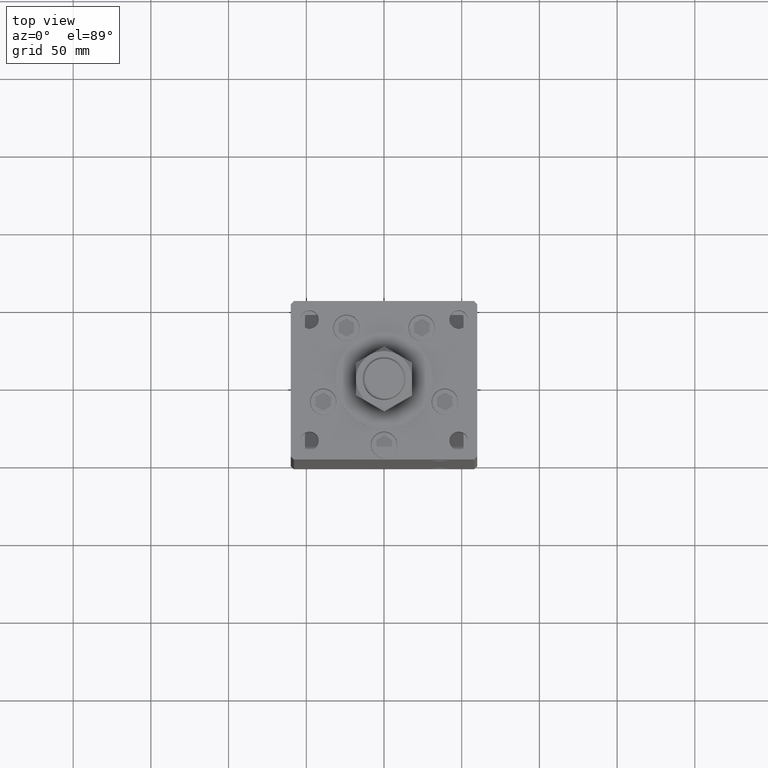
[diagram: clean part render]
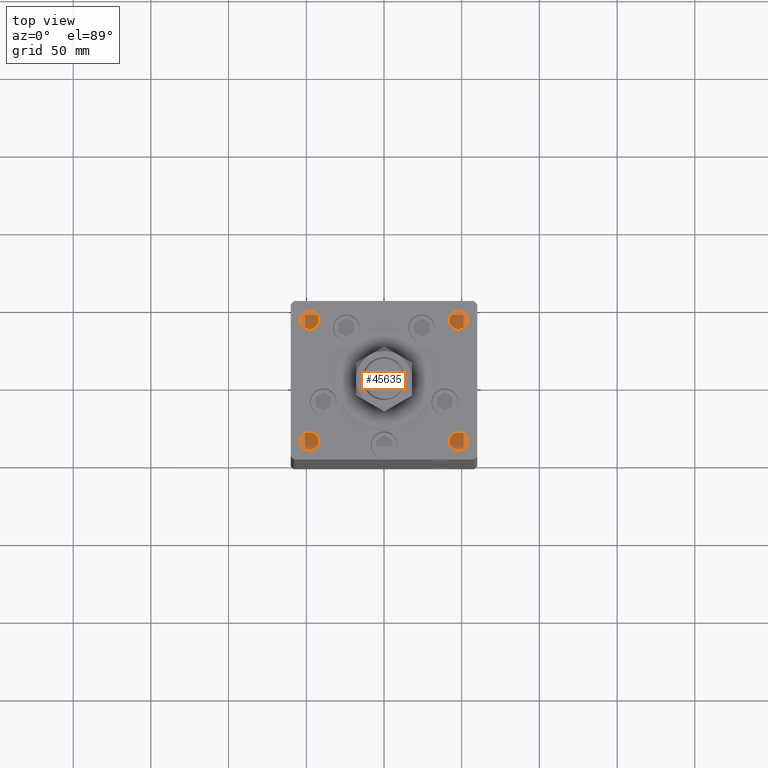
[diagram: same view with one face highlighted and labeled with its STEP entity id]
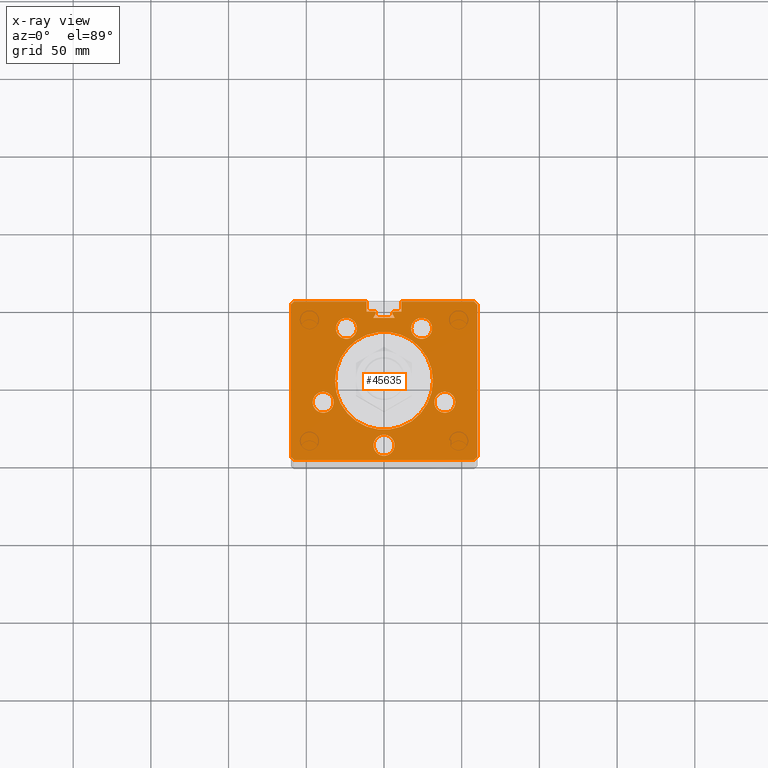
[diagram: x-ray of the same camera — body ghosted, the highlighted face saturated]
A machine part, top view. The second image highlights one B-rep face of the part: STEP entity #45635.
The next image is the same camera in x-ray: the body ghosted, the highlighted face saturated — about 0% of this face is hidden behind the body in this view.
In plain terms, the highlighted planar face has unit normal (0, 0, -1).
Its self-contained STEP definition (entity closure, byte-faithful):
#270 = CARTESIAN_POINT ( 'NONE',  ( -11.25000000000000178, 44.50000000000000000, 318.5000000000000000 ) ) ;
#558 = AXIS2_PLACEMENT_3D ( 'NONE', #9356, #42486, #34333 ) ;
#716 = EDGE_CURVE ( 'NONE', #14718, #2079, #18119, .T. ) ;
#1038 = CARTESIAN_POINT ( 'NONE',  ( -60.00000000000001421, 49.00000000000000000, 318.5000000000000000 ) ) ;
#1446 = CIRCLE ( 'NONE', #50907, 31.50000000000000000 ) ;
#1694 = ORIENTED_EDGE ( 'NONE', *, *, #1738, .F. ) ;
#1738 = EDGE_CURVE ( 'NONE', #10293, #4302, #29128, .T. ) ;
#2050 = FACE_BOUND ( 'NONE', #32318, .T. ) ;
#2079 = VERTEX_POINT ( 'NONE', #8163 ) ;
#2088 = CARTESIAN_POINT ( 'NONE',  ( -6.183333333334001480, 43.56666666666598786, 318.5000000000000000 ) ) ;
#2134 = ORIENTED_EDGE ( 'NONE', *, *, #38335, .F. ) ;
#2491 = CIRCLE ( 'NONE', #23319, 31.50000000000000000 ) ;
#2617 = DIRECTION ( 'NONE',  ( 0.000000000000000000, 0.000000000000000000, 1.000000000000000000 ) ) ;
#2656 = ORIENTED_EDGE ( 'NONE', *, *, #41842, .F. ) ;
#2829 = VERTEX_POINT ( 'NONE', #27191 ) ;
#2858 = CIRCLE ( 'NONE', #33246, 6.749999999999999112 ) ;
#3054 = AXIS2_PLACEMENT_3D ( 'NONE', #34665, #42816, #47159 ) ;
#3093 = EDGE_CURVE ( 'NONE', #15307, #28090, #5847, .T. ) ;
#3126 = VECTOR ( 'NONE', #43746, 1000.000000000000000 ) ;
#3192 = CARTESIAN_POINT ( 'NONE',  ( 11.25000000000000178, 44.50000000000000000, 318.5000000000000000 ) ) ;
#3212 = DIRECTION ( 'NONE',  ( 1.000000000000000000, 0.000000000000000000, 0.000000000000000000 ) ) ;
#3255 = LINE ( 'NONE', #19832, #41037 ) ;
#3430 = VECTOR ( 'NONE', #45978, 1000.000000000000114 ) ;
#3450 = ORIENTED_EDGE ( 'NONE', *, *, #12831, .T. ) ;
#3523 = CIRCLE ( 'NONE', #21746, 6.749999999999999112 ) ;
#3587 = ORIENTED_EDGE ( 'NONE', *, *, #50983, .T. ) ;
#3639 = VERTEX_POINT ( 'NONE', #52747 ) ;
#3803 = VERTEX_POINT ( 'NONE', #270 ) ;
#4002 = DIRECTION ( 'NONE',  ( -1.000000000000000000, 0.000000000000000000, 0.000000000000000000 ) ) ;
#4302 = VERTEX_POINT ( 'NONE', #34562 ) ;
#4519 = VERTEX_POINT ( 'NONE', #38023 ) ;
#5383 = LINE ( 'NONE', #1038, #22794 ) ;
#5847 = CIRCLE ( 'NONE', #9365, 6.749999999999999112 ) ;
#5924 = CARTESIAN_POINT ( 'NONE',  ( 11.25000000000000178, 0.000000000000000000, 318.5000000000000000 ) ) ;
#6598 = CIRCLE ( 'NONE', #558, 6.749999999999999112 ) ;
#6796 = AXIS2_PLACEMENT_3D ( 'NONE', #2088, #51552, #14360 ) ;
#7168 = EDGE_CURVE ( 'NONE', #4302, #53371, #38229, .T. ) ;
#7358 = CARTESIAN_POINT ( 'NONE',  ( -22.69412966890520877, 13.10246187336675661, 318.5000000000000000 ) ) ;
#7478 = EDGE_CURVE ( 'NONE', #23489, #22147, #25933, .T. ) ;
#7910 = EDGE_CURVE ( 'NONE', #48003, #3803, #29560, .T. ) ;
#8021 = DIRECTION ( 'NONE',  ( 1.000000000000000000, 0.000000000000000000, 0.000000000000000000 ) ) ;
#8163 = CARTESIAN_POINT ( 'NONE',  ( -11.25000000000000178, 51.00000000000000000, 318.5000000000000000 ) ) ;
#8228 = EDGE_CURVE ( 'NONE', #43867, #29704, #15583, .T. ) ;
#8378 = ORIENTED_EDGE ( 'NONE', *, *, #3093, .F. ) ;
#8641 = CARTESIAN_POINT ( 'NONE',  ( 57.99999999999999289, 51.00000000000000711, 318.5000000000000000 ) ) ;
#8838 = CARTESIAN_POINT ( 'NONE',  ( -57.99999999999997868, -51.00000000000000711, 318.5000000000000000 ) ) ;
#8988 = VERTEX_POINT ( 'NONE', #35208 ) ;
#9143 = VERTEX_POINT ( 'NONE', #20062 ) ;
#9237 = DIRECTION ( 'NONE',  ( 1.000000000000000000, 0.000000000000000000, 0.000000000000000000 ) ) ;
#9290 = VECTOR ( 'NONE', #38224, 1000.000000000000000 ) ;
#9356 = CARTESIAN_POINT ( 'NONE',  ( 39.12657522565563539, -13.83333333333332682, 318.5000000000000000 ) ) ;
#9365 = AXIS2_PLACEMENT_3D ( 'NONE', #52668, #31742, #3212 ) ;
#9641 = LINE ( 'NONE', #7358, #31161 ) ;
#9668 = DIRECTION ( 'NONE',  ( 1.000000000000000000, 0.000000000000000000, 0.000000000000000000 ) ) ;
#9705 = FACE_BOUND ( 'NONE', #50352, .T. ) ;
#9967 = FACE_BOUND ( 'NONE', #10148, .T. ) ;
#10036 = CARTESIAN_POINT ( 'NONE',  ( 0.000000000000000000, 0.000000000000000000, 318.5000000000000000 ) ) ;
#10140 = EDGE_CURVE ( 'NONE', #3639, #27984, #52911, .T. ) ;
#10148 = EDGE_LOOP ( 'NONE', ( #20351, #51737 ) ) ;
#10187 = DIRECTION ( 'NONE',  ( 1.000000000000000000, 0.000000000000000000, 0.000000000000000000 ) ) ;
#10230 = FACE_BOUND ( 'NONE', #47882, .T. ) ;
#10293 = VERTEX_POINT ( 'NONE', #46326 ) ;
#10465 = DIRECTION ( 'NONE',  ( 0.000000000000000000, 0.000000000000000000, -1.000000000000000000 ) ) ;
#10469 = LINE ( 'NONE', #39779, #12246 ) ;
#10793 = DIRECTION ( 'NONE',  ( 1.000000000000000000, 0.000000000000000000, 0.000000000000000000 ) ) ;
#11104 = EDGE_CURVE ( 'NONE', #26176, #43111, #30404, .T. ) ;
#11342 = AXIS2_PLACEMENT_3D ( 'NONE', #22016, #51085, #38581 ) ;
#12053 = DIRECTION ( 'NONE',  ( 1.000000000000000000, 0.000000000000000000, 0.000000000000000000 ) ) ;
#12092 = ORIENTED_EDGE ( 'NONE', *, *, #50956, .F. ) ;
#12105 = CARTESIAN_POINT ( 'NONE',  ( -17.44288941894912526, 33.71875000000000000, 318.5000000000000000 ) ) ;
#12246 = VECTOR ( 'NONE', #44136, 1000.000000000000000 ) ;
#12506 = EDGE_CURVE ( 'NONE', #3803, #2079, #33913, .T. ) ;
#12650 = LINE ( 'NONE', #53415, #14126 ) ;
#12831 = EDGE_CURVE ( 'NONE', #23011, #33125, #10469, .T. ) ;
#13186 = DIRECTION ( 'NONE',  ( 1.000000000000000000, 0.000000000000000000, 0.000000000000000000 ) ) ;
#13285 = ORIENTED_EDGE ( 'NONE', *, *, #10140, .F. ) ;
#13311 = CARTESIAN_POINT ( 'NONE',  ( 6.183333333334001480, 44.50000000000000000, 318.5000000000000000 ) ) ;
#13313 = EDGE_LOOP ( 'NONE', ( #46670, #25672, #21979, #19629, #25750, #3587, #45477, #44780, #43085, #52225, #1694, #40322, #43011, #25100, #27001, #3450, #25621, #22360, #28797 ) ) ;
#13421 = CARTESIAN_POINT ( 'NONE',  ( -5.375042956467942723, 43.09999999999898534, 318.5000000000000000 ) ) ;
#14054 = CARTESIAN_POINT ( 'NONE',  ( 0.000000000000000000, 0.000000000000000000, 318.5000000000000000 ) ) ;
#14126 = VECTOR ( 'NONE', #49585, 1000.000000000000114 ) ;
#14360 = DIRECTION ( 'NONE',  ( 1.000000000000000000, 0.000000000000000000, 0.000000000000000000 ) ) ;
#14718 = VERTEX_POINT ( 'NONE', #27335 ) ;
#14995 = LINE ( 'NONE', #31545, #53138 ) ;
#15081 = CARTESIAN_POINT ( 'NONE',  ( -6.183333333334001480, 43.56666666666598786, 318.5000000000000000 ) ) ;
#15181 = LINE ( 'NONE', #5924, #30540 ) ;
#15226 = ORIENTED_EDGE ( 'NONE', *, *, #42463, .F. ) ;
#15234 = CARTESIAN_POINT ( 'NONE',  ( -6.876153656360466826, 40.49999999999987210, 318.5000000000000000 ) ) ;
#15242 = DIRECTION ( 'NONE',  ( -0.7071067811865474617, -0.7071067811865474617, 0.000000000000000000 ) ) ;
#15307 = VERTEX_POINT ( 'NONE', #23232 ) ;
#15583 = CIRCLE ( 'NONE', #40725, 0.9333333333340068094 ) ;
#15926 = CARTESIAN_POINT ( 'NONE',  ( -24.19288941894912526, 33.71875000000000000, 318.5000000000000000 ) ) ;
#16229 = EDGE_CURVE ( 'NONE', #8988, #34982, #3523, .T. ) ;
#16469 = CARTESIAN_POINT ( 'NONE',  ( 5.082284216461515748E-15, -41.50000000000000000, 318.5000000000000000 ) ) ;
#17060 = CIRCLE ( 'NONE', #3054, 6.749999999999999112 ) ;
#17145 = EDGE_CURVE ( 'NONE', #34982, #8988, #46063, .T. ) ;
#17262 = AXIS2_PLACEMENT_3D ( 'NONE', #52004, #18862, #10187 ) ;
#18040 = CARTESIAN_POINT ( 'NONE',  ( 5.082284216461515748E-15, -41.50000000000000000, 318.5000000000000000 ) ) ;
#18119 = LINE ( 'NONE', #34166, #9290 ) ;
#18754 = LINE ( 'NONE', #35317, #3126 ) ;
#18862 = DIRECTION ( 'NONE',  ( 0.000000000000000000, 0.000000000000000000, 1.000000000000000000 ) ) ;
#18879 = CARTESIAN_POINT ( 'NONE',  ( 60.00000000000001421, 49.00000000000000000, 318.5000000000000000 ) ) ;
#19096 = CARTESIAN_POINT ( 'NONE',  ( 30.94288941894911460, 33.71875000000000711, 318.5000000000000000 ) ) ;
#19629 = ORIENTED_EDGE ( 'NONE', *, *, #21781, .T. ) ;
#19832 = CARTESIAN_POINT ( 'NONE',  ( 59.99999999999998579, -49.00000000000000000, 318.5000000000000000 ) ) ;
#20062 = CARTESIAN_POINT ( 'NONE',  ( -60.00000000000001421, 49.00000000000000000, 318.5000000000000000 ) ) ;
#20351 = ORIENTED_EDGE ( 'NONE', *, *, #16229, .F. ) ;
#20606 = CARTESIAN_POINT ( 'NONE',  ( 57.99999999999997868, -51.00000000000000711, 318.5000000000000000 ) ) ;
#21169 = EDGE_CURVE ( 'NONE', #26176, #23011, #12650, .T. ) ;
#21633 = VECTOR ( 'NONE', #23272, 1000.000000000000000 ) ;
#21746 = AXIS2_PLACEMENT_3D ( 'NONE', #18040, #26192, #13186 ) ;
#21781 = EDGE_CURVE ( 'NONE', #14718, #9143, #14995, .T. ) ;
#21800 = EDGE_CURVE ( 'NONE', #38041, #43111, #45575, .T. ) ;
#21930 = DIRECTION ( 'NONE',  ( 0.7071067811865500152, -0.7071067811865451302, 0.000000000000000000 ) ) ;
#21979 = ORIENTED_EDGE ( 'NONE', *, *, #716, .F. ) ;
#22016 = CARTESIAN_POINT ( 'NONE',  ( 6.183333333334001480, 43.56666666666598786, 318.5000000000000000 ) ) ;
#22147 = VERTEX_POINT ( 'NONE', #44985 ) ;
#22360 = ORIENTED_EDGE ( 'NONE', *, *, #8228, .F. ) ;
#22794 = VECTOR ( 'NONE', #47487, 1000.000000000000000 ) ;
#22933 = CARTESIAN_POINT ( 'NONE',  ( 24.19288941894911815, 33.71875000000000711, 318.5000000000000000 ) ) ;
#23011 = VERTEX_POINT ( 'NONE', #31298 ) ;
#23232 = CARTESIAN_POINT ( 'NONE',  ( 17.44288941894911460, 33.71875000000000711, 318.5000000000000000 ) ) ;
#23268 = CARTESIAN_POINT ( 'NONE',  ( -24.19288941894912526, 33.71875000000000000, 318.5000000000000000 ) ) ;
#23272 = DIRECTION ( 'NONE',  ( -1.000000000000000000, 0.000000000000000000, 0.000000000000000000 ) ) ;
#23319 = AXIS2_PLACEMENT_3D ( 'NONE', #30410, #46433, #9237 ) ;
#23489 = VERTEX_POINT ( 'NONE', #30100 ) ;
#23777 = DIRECTION ( 'NONE',  ( 0.000000000000000000, 0.000000000000000000, 1.000000000000000000 ) ) ;
#24963 = EDGE_LOOP ( 'NONE', ( #37304, #46352 ) ) ;
#25045 = CIRCLE ( 'NONE', #6796, 0.9333333333340068094 ) ;
#25100 = ORIENTED_EDGE ( 'NONE', *, *, #11104, .F. ) ;
#25327 = EDGE_CURVE ( 'NONE', #10293, #38041, #15181, .T. ) ;
#25621 = ORIENTED_EDGE ( 'NONE', *, *, #49986, .T. ) ;
#25672 = ORIENTED_EDGE ( 'NONE', *, *, #12506, .T. ) ;
#25714 = PLANE ( 'NONE',  #44005 ) ;
#25750 = ORIENTED_EDGE ( 'NONE', *, *, #27773, .T. ) ;
#25925 = LINE ( 'NONE', #8838, #35493 ) ;
#25933 = CIRCLE ( 'NONE', #17262, 6.749999999999999112 ) ;
#25981 = DIRECTION ( 'NONE',  ( 0.000000000000000000, 0.000000000000000000, -1.000000000000000000 ) ) ;
#26176 = VERTEX_POINT ( 'NONE', #49023 ) ;
#26192 = DIRECTION ( 'NONE',  ( 0.000000000000000000, 0.000000000000000000, 1.000000000000000000 ) ) ;
#26254 = FACE_OUTER_BOUND ( 'NONE', #13313, .T. ) ;
#26486 = VERTEX_POINT ( 'NONE', #49100 ) ;
#26585 = DIRECTION ( 'NONE',  ( 1.000000000000000000, 0.000000000000000000, 0.000000000000000000 ) ) ;
#26851 = DIRECTION ( 'NONE',  ( -0.000000000000000000, 0.000000000000000000, 1.000000000000000000 ) ) ;
#27001 = ORIENTED_EDGE ( 'NONE', *, *, #21169, .T. ) ;
#27191 = CARTESIAN_POINT ( 'NONE',  ( -57.99999999999997868, -51.00000000000000711, 318.5000000000000000 ) ) ;
#27335 = CARTESIAN_POINT ( 'NONE',  ( -57.99999999999999289, 51.00000000000000711, 318.5000000000000000 ) ) ;
#27521 = EDGE_CURVE ( 'NONE', #4519, #47542, #3255, .T. ) ;
#27644 = VERTEX_POINT ( 'NONE', #44286 ) ;
#27754 = CARTESIAN_POINT ( 'NONE',  ( -6.183333333334001480, 44.50000000000000000, 318.5000000000000000 ) ) ;
#27773 = EDGE_CURVE ( 'NONE', #9143, #34534, #5383, .T. ) ;
#27984 = VERTEX_POINT ( 'NONE', #12105 ) ;
#28090 = VERTEX_POINT ( 'NONE', #19096 ) ;
#28256 = VERTEX_POINT ( 'NONE', #43645 ) ;
#28584 = EDGE_CURVE ( 'NONE', #28090, #15307, #2858, .T. ) ;
#28797 = ORIENTED_EDGE ( 'NONE', *, *, #48725, .F. ) ;
#29128 = LINE ( 'NONE', #45704, #32753 ) ;
#29457 = CIRCLE ( 'NONE', #32932, 6.749999999999999112 ) ;
#29560 = LINE ( 'NONE', #35494, #21633 ) ;
#29704 = VERTEX_POINT ( 'NONE', #13421 ) ;
#30100 = CARTESIAN_POINT ( 'NONE',  ( -32.37657522565563539, -13.83333333333333570, 318.5000000000000000 ) ) ;
#30404 = CIRCLE ( 'NONE', #11342, 0.9333333333340068094 ) ;
#30410 = CARTESIAN_POINT ( 'NONE',  ( 0.000000000000000000, 0.000000000000000000, 318.5000000000000000 ) ) ;
#30540 = VECTOR ( 'NONE', #52385, 1000.000000000000000 ) ;
#30608 = DIRECTION ( 'NONE',  ( -1.000000000000000000, 0.000000000000000000, -0.000000000000000000 ) ) ;
#31161 = VECTOR ( 'NONE', #36951, 1000.000000000000114 ) ;
#31298 = CARTESIAN_POINT ( 'NONE',  ( 6.876153656360466826, 40.49999999999987210, 318.5000000000000000 ) ) ;
#31545 = CARTESIAN_POINT ( 'NONE',  ( -57.99999999999999289, 51.00000000000000711, 318.5000000000000000 ) ) ;
#31742 = DIRECTION ( 'NONE',  ( 0.000000000000000000, 0.000000000000000000, 1.000000000000000000 ) ) ;
#32318 = EDGE_LOOP ( 'NONE', ( #33390, #8378 ) ) ;
#32702 = DIRECTION ( 'NONE',  ( 0.000000000000000000, 0.000000000000000000, 1.000000000000000000 ) ) ;
#32753 = VECTOR ( 'NONE', #12053, 1000.000000000000000 ) ;
#32899 = CARTESIAN_POINT ( 'NONE',  ( -5.249999999999994671, 43.56666666666598786, 318.5000000000000000 ) ) ;
#32932 = AXIS2_PLACEMENT_3D ( 'NONE', #45184, #32702, #40026 ) ;
#33027 = DIRECTION ( 'NONE',  ( 0.000000000000000000, 0.000000000000000000, 1.000000000000000000 ) ) ;
#33125 = VERTEX_POINT ( 'NONE', #15234 ) ;
#33227 = CARTESIAN_POINT ( 'NONE',  ( -59.99999999999998579, -49.00000000000000000, 318.5000000000000000 ) ) ;
#33246 = AXIS2_PLACEMENT_3D ( 'NONE', #22933, #43051, #9668 ) ;
#33390 = ORIENTED_EDGE ( 'NONE', *, *, #28584, .F. ) ;
#33616 = CARTESIAN_POINT ( 'NONE',  ( 0.000000000000000000, 44.50000000000000000, 318.5000000000000000 ) ) ;
#33913 = LINE ( 'NONE', #34186, #37371 ) ;
#34166 = CARTESIAN_POINT ( 'NONE',  ( -11.25000000000000178, 51.00000000000000000, 318.5000000000000000 ) ) ;
#34186 = CARTESIAN_POINT ( 'NONE',  ( -11.25000000000000178, 0.000000000000000000, 318.5000000000000000 ) ) ;
#34333 = DIRECTION ( 'NONE',  ( 1.000000000000000000, 0.000000000000000000, 0.000000000000000000 ) ) ;
#34534 = VERTEX_POINT ( 'NONE', #43826 ) ;
#34562 = CARTESIAN_POINT ( 'NONE',  ( 57.99999999999999289, 51.00000000000000711, 318.5000000000000000 ) ) ;
#34665 = CARTESIAN_POINT ( 'NONE',  ( 39.12657522565563539, -13.83333333333332682, 318.5000000000000000 ) ) ;
#34778 = AXIS2_PLACEMENT_3D ( 'NONE', #16469, #33027, #49590 ) ;
#34982 = VERTEX_POINT ( 'NONE', #44043 ) ;
#35208 = CARTESIAN_POINT ( 'NONE',  ( 6.750000000000004441, -41.50000000000000000, 318.5000000000000000 ) ) ;
#35317 = CARTESIAN_POINT ( 'NONE',  ( 60.00000000000001421, 49.00000000000000000, 318.5000000000000000 ) ) ;
#35494 = CARTESIAN_POINT ( 'NONE',  ( 0.000000000000000000, 44.50000000000000000, 318.5000000000000000 ) ) ;
#35493 = VECTOR ( 'NONE', #42237, 1000.000000000000000 ) ;
#35970 = DIRECTION ( 'NONE',  ( 1.000000000000000000, 0.000000000000000000, 0.000000000000000000 ) ) ;
#36951 = DIRECTION ( 'NONE',  ( 0.5000000000000016653, 0.8660254037844375974, 0.000000000000000000 ) ) ;
#37182 = ORIENTED_EDGE ( 'NONE', *, *, #7478, .F. ) ;
#37304 = ORIENTED_EDGE ( 'NONE', *, *, #50091, .F. ) ;
#37371 = VECTOR ( 'NONE', #38242, 1000.000000000000000 ) ;
#37787 = EDGE_CURVE ( 'NONE', #53371, #4519, #18754, .T. ) ;
#37831 = AXIS2_PLACEMENT_3D ( 'NONE', #15926, #23777, #8021 ) ;
#38023 = CARTESIAN_POINT ( 'NONE',  ( 59.99999999999998579, -49.00000000000000000, 318.5000000000000000 ) ) ;
#38041 = VERTEX_POINT ( 'NONE', #3192 ) ;
#38224 = DIRECTION ( 'NONE',  ( 1.000000000000000000, 0.000000000000000000, 0.000000000000000000 ) ) ;
#38229 = LINE ( 'NONE', #8641, #41531 ) ;
#38242 = DIRECTION ( 'NONE',  ( 0.000000000000000000, 1.000000000000000000, 0.000000000000000000 ) ) ;
#38335 = EDGE_CURVE ( 'NONE', #26486, #27644, #17060, .T. ) ;
#38581 = DIRECTION ( 'NONE',  ( 1.000000000000000000, 0.000000000000000000, 0.000000000000000000 ) ) ;
#38744 = FACE_BOUND ( 'NONE', #24963, .T. ) ;
#39277 = FACE_BOUND ( 'NONE', #48305, .T. ) ;
#39779 = CARTESIAN_POINT ( 'NONE',  ( 0.000000000000000000, 40.49999999999987210, 318.5000000000000000 ) ) ;
#39831 = VERTEX_POINT ( 'NONE', #50655 ) ;
#40026 = DIRECTION ( 'NONE',  ( 1.000000000000000000, 0.000000000000000000, 0.000000000000000000 ) ) ;
#40322 = ORIENTED_EDGE ( 'NONE', *, *, #25327, .T. ) ;
#40725 = AXIS2_PLACEMENT_3D ( 'NONE', #15081, #10465, #35970 ) ;
#41037 = VECTOR ( 'NONE', #15242, 1000.000000000000114 ) ;
#41531 = VECTOR ( 'NONE', #21930, 1000.000000000000114 ) ;
#41842 = EDGE_CURVE ( 'NONE', #27644, #26486, #6598, .T. ) ;
#42237 = DIRECTION ( 'NONE',  ( 1.000000000000000000, 0.000000000000000000, 0.000000000000000000 ) ) ;
#42463 = EDGE_CURVE ( 'NONE', #27984, #3639, #43919, .T. ) ;
#42486 = DIRECTION ( 'NONE',  ( 0.000000000000000000, 0.000000000000000000, 1.000000000000000000 ) ) ;
#42816 = DIRECTION ( 'NONE',  ( 0.000000000000000000, 0.000000000000000000, 1.000000000000000000 ) ) ;
#43011 = ORIENTED_EDGE ( 'NONE', *, *, #21800, .T. ) ;
#43051 = DIRECTION ( 'NONE',  ( 0.000000000000000000, 0.000000000000000000, 1.000000000000000000 ) ) ;
#43085 = ORIENTED_EDGE ( 'NONE', *, *, #37787, .F. ) ;
#43111 = VERTEX_POINT ( 'NONE', #13311 ) ;
#43645 = CARTESIAN_POINT ( 'NONE',  ( 31.50000000000000000, 3.857637417314162689E-15, 318.5000000000000000 ) ) ;
#43746 = DIRECTION ( 'NONE',  ( -2.832201593431521726E-16, -1.000000000000000000, 0.000000000000000000 ) ) ;
#43826 = CARTESIAN_POINT ( 'NONE',  ( -59.99999999999998579, -49.00000000000000000, 318.5000000000000000 ) ) ;
#43867 = VERTEX_POINT ( 'NONE', #32899 ) ;
#43919 = CIRCLE ( 'NONE', #37831, 6.749999999999999112 ) ;
#43971 = EDGE_CURVE ( 'NONE', #28256, #39831, #1446, .T. ) ;
#44005 = AXIS2_PLACEMENT_3D ( 'NONE', #14054, #25981, #30608 ) ;
#44043 = CARTESIAN_POINT ( 'NONE',  ( -6.749999999999993783, -41.50000000000000000, 318.5000000000000000 ) ) ;
#44136 = DIRECTION ( 'NONE',  ( -1.000000000000000000, 0.000000000000000000, 0.000000000000000000 ) ) ;
#44286 = CARTESIAN_POINT ( 'NONE',  ( 45.87657522565563539, -13.83333333333332682, 318.5000000000000000 ) ) ;
#44780 = ORIENTED_EDGE ( 'NONE', *, *, #27521, .F. ) ;
#44985 = CARTESIAN_POINT ( 'NONE',  ( -45.87657522565563539, -13.83333333333333570, 318.5000000000000000 ) ) ;
#45184 = CARTESIAN_POINT ( 'NONE',  ( -39.12657522565563539, -13.83333333333333570, 318.5000000000000000 ) ) ;
#45326 = VECTOR ( 'NONE', #4002, 1000.000000000000000 ) ;
#45477 = ORIENTED_EDGE ( 'NONE', *, *, #50694, .T. ) ;
#45575 = LINE ( 'NONE', #33616, #45326 ) ;
#45635 = ADVANCED_FACE ( 'NONE', ( #9705, #9967, #39277, #2050, #10230, #26254, #38744 ), #25714, .F. ) ;
#45704 = CARTESIAN_POINT ( 'NONE',  ( -11.25000000000000178, 51.00000000000000000, 318.5000000000000000 ) ) ;
#45978 = DIRECTION ( 'NONE',  ( 0.7071067811865474617, -0.7071067811865474617, 0.000000000000000000 ) ) ;
#46063 = CIRCLE ( 'NONE', #34778, 6.749999999999999112 ) ;
#46326 = CARTESIAN_POINT ( 'NONE',  ( 11.24999999999999467, 51.00000000000000000, 318.5000000000000000 ) ) ;
#46352 = ORIENTED_EDGE ( 'NONE', *, *, #43971, .F. ) ;
#46433 = DIRECTION ( 'NONE',  ( -0.000000000000000000, 0.000000000000000000, 1.000000000000000000 ) ) ;
#46670 = ORIENTED_EDGE ( 'NONE', *, *, #7910, .T. ) ;
#47159 = DIRECTION ( 'NONE',  ( 1.000000000000000000, 0.000000000000000000, 0.000000000000000000 ) ) ;
#47487 = DIRECTION ( 'NONE',  ( 2.832201593431521726E-16, -1.000000000000000000, 0.000000000000000000 ) ) ;
#47542 = VERTEX_POINT ( 'NONE', #20606 ) ;
#47882 = EDGE_LOOP ( 'NONE', ( #15226, #13285 ) ) ;
#48003 = VERTEX_POINT ( 'NONE', #27754 ) ;
#48115 = DIRECTION ( 'NONE',  ( -0.7071067811865500152, -0.7071067811865451302, 0.000000000000000000 ) ) ;
#48305 = EDGE_LOOP ( 'NONE', ( #2656, #2134 ) ) ;
#48590 = AXIS2_PLACEMENT_3D ( 'NONE', #23268, #2617, #10793 ) ;
#48725 = EDGE_CURVE ( 'NONE', #48003, #43867, #25045, .T. ) ;
#49023 = CARTESIAN_POINT ( 'NONE',  ( 5.375042956467945388, 43.09999999999898534, 318.5000000000000000 ) ) ;
#49100 = CARTESIAN_POINT ( 'NONE',  ( 32.37657522565563539, -13.83333333333332682, 318.5000000000000000 ) ) ;
#49585 = DIRECTION ( 'NONE',  ( 0.5000000000000016653, -0.8660254037844375974, 0.000000000000000000 ) ) ;
#49590 = DIRECTION ( 'NONE',  ( 1.000000000000000000, 0.000000000000000000, 0.000000000000000000 ) ) ;
#49795 = LINE ( 'NONE', #33227, #3430 ) ;
#49986 = EDGE_CURVE ( 'NONE', #33125, #29704, #9641, .T. ) ;
#50091 = EDGE_CURVE ( 'NONE', #39831, #28256, #2491, .T. ) ;
#50352 = EDGE_LOOP ( 'NONE', ( #37182, #12092 ) ) ;
#50655 = CARTESIAN_POINT ( 'NONE',  ( -31.50000000000000000, 0.000000000000000000, 318.5000000000000000 ) ) ;
#50694 = EDGE_CURVE ( 'NONE', #2829, #47542, #25925, .T. ) ;
#50907 = AXIS2_PLACEMENT_3D ( 'NONE', #10036, #26851, #26585 ) ;
#50956 = EDGE_CURVE ( 'NONE', #22147, #23489, #29457, .T. ) ;
#50983 = EDGE_CURVE ( 'NONE', #34534, #2829, #49795, .T. ) ;
#51085 = DIRECTION ( 'NONE',  ( 0.000000000000000000, 0.000000000000000000, -1.000000000000000000 ) ) ;
#51552 = DIRECTION ( 'NONE',  ( 0.000000000000000000, 0.000000000000000000, -1.000000000000000000 ) ) ;
#51737 = ORIENTED_EDGE ( 'NONE', *, *, #17145, .F. ) ;
#52004 = CARTESIAN_POINT ( 'NONE',  ( -39.12657522565563539, -13.83333333333333570, 318.5000000000000000 ) ) ;
#52225 = ORIENTED_EDGE ( 'NONE', *, *, #7168, .F. ) ;
#52385 = DIRECTION ( 'NONE',  ( -0.000000000000000000, -1.000000000000000000, 0.000000000000000000 ) ) ;
#52668 = CARTESIAN_POINT ( 'NONE',  ( 24.19288941894911815, 33.71875000000000711, 318.5000000000000000 ) ) ;
#52747 = CARTESIAN_POINT ( 'NONE',  ( -30.94288941894912526, 33.71875000000000000, 318.5000000000000000 ) ) ;
#52911 = CIRCLE ( 'NONE', #48590, 6.749999999999999112 ) ;
#53138 = VECTOR ( 'NONE', #48115, 1000.000000000000114 ) ;
#53371 = VERTEX_POINT ( 'NONE', #18879 ) ;
#53415 = CARTESIAN_POINT ( 'NONE',  ( 22.69412966890520877, 13.10246187336675661, 318.5000000000000000 ) ) ;